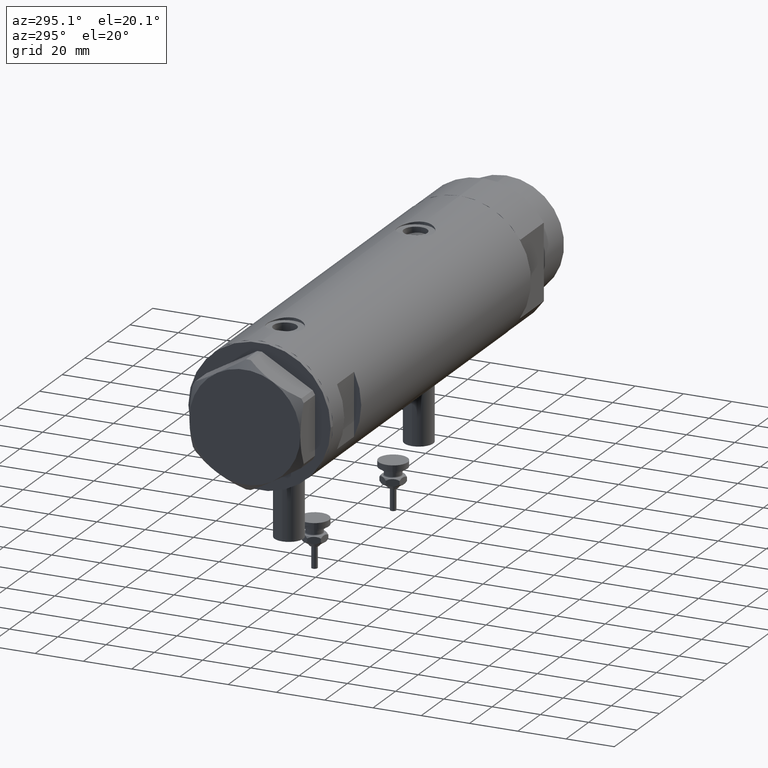
[diagram: clean part render]
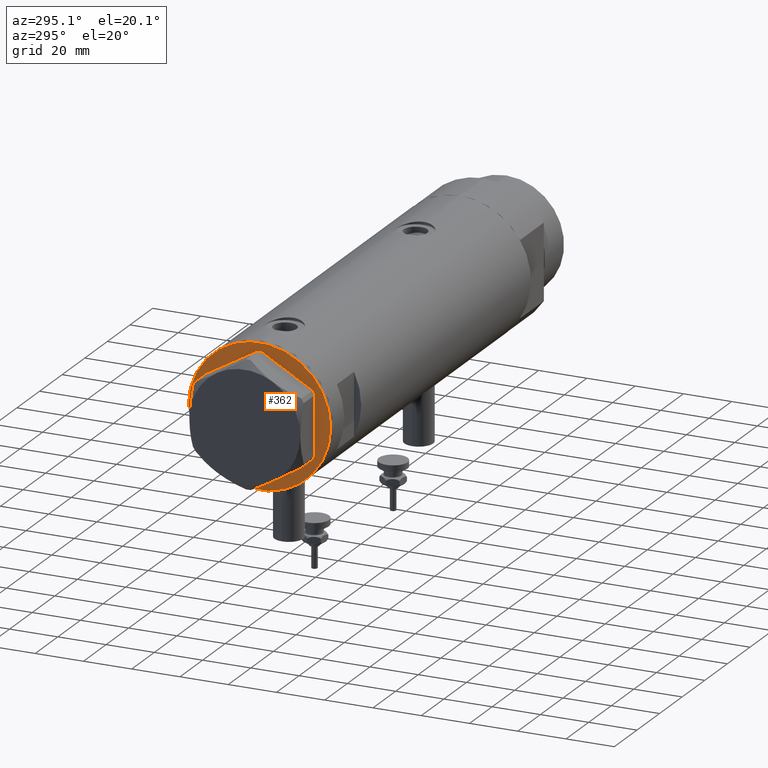
[diagram: same view with one face highlighted and labeled with its STEP entity id]
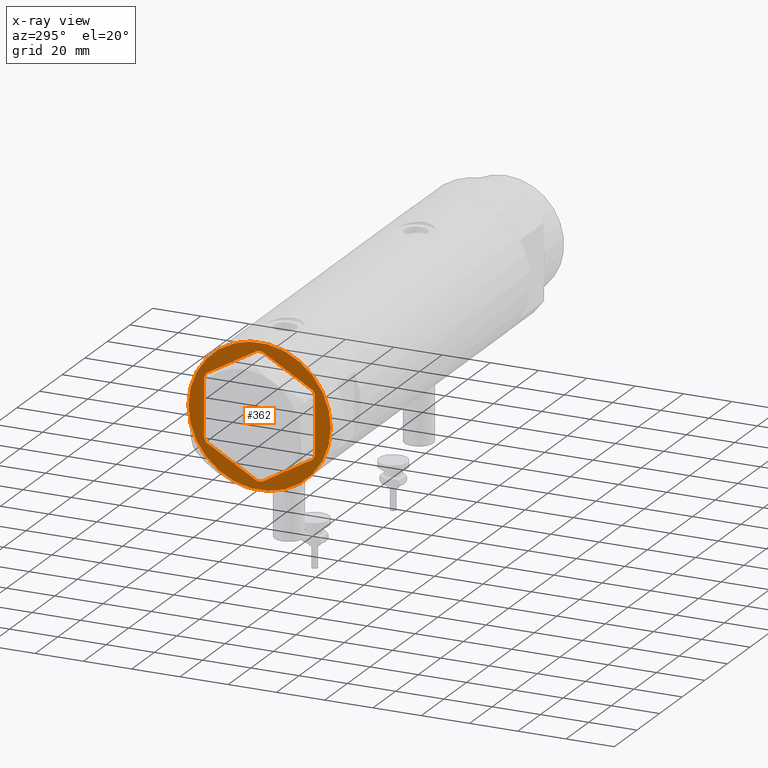
[diagram: x-ray of the same camera — body ghosted, the highlighted face saturated]
A machine part, auxiliary view. The second image highlights one B-rep face of the part: STEP entity #362.
The next image is the same camera in x-ray: the body ghosted, the highlighted face saturated — about 0% of this face is hidden behind the body in this view.
In plain terms, the highlighted planar face has unit normal (1, 0, -0).
Its self-contained STEP definition (entity closure, byte-faithful):
#47 = ORIENTED_EDGE ( 'NONE', *, *, #3498, .F. ) ;
#72 = CARTESIAN_POINT ( 'NONE',  ( 23.00000000000008527, -13.27905619136115867, 0.000000000000000000 ) ) ;
#128 = DIRECTION ( 'NONE',  ( -1.000000000000000000, 0.000000000000000000, 0.000000000000000000 ) ) ;
#138 = DIRECTION ( 'NONE',  ( -1.000000000000000000, -7.153879041605523216E-15, -0.000000000000000000 ) ) ;
#208 = ORIENTED_EDGE ( 'NONE', *, *, #3197, .T. ) ;
#236 = CARTESIAN_POINT ( 'NONE',  ( 22.99999999999982236, 12.15905619136166571, 0.000000000000000000 ) ) ;
#293 = VECTOR ( 'NONE', #5855, 1000.000000000000227 ) ;
#333 = EDGE_CURVE ( 'NONE', #1749, #1551, #4861, .T. ) ;
#342 = DIRECTION ( 'NONE',  ( 0.8660254037844345998, 0.5000000000000069944, 0.000000000000000000 ) ) ;
#355 = DIRECTION ( 'NONE',  ( 0.000000000000000000, 0.000000000000000000, -1.000000000000000000 ) ) ;
#362 = ADVANCED_FACE ( 'NONE', ( #5022, #5078 ), #3181, .F. ) ;
#386 = CARTESIAN_POINT ( 'NONE',  ( -22.99999999999990763, -12.15905619136148985, 0.000000000000000000 ) ) ;
#430 = VERTEX_POINT ( 'NONE', #386 ) ;
#470 = CIRCLE ( 'NONE', #3052, 29.50000000000000355 ) ;
#515 = DIRECTION ( 'NONE',  ( 0.000000000000000000, 0.000000000000000000, -1.000000000000000000 ) ) ;
#581 = VERTEX_POINT ( 'NONE', #236 ) ;
#643 = AXIS2_PLACEMENT_3D ( 'NONE', #2337, #515, #2230 ) ;
#658 = ORIENTED_EDGE ( 'NONE', *, *, #3867, .T. ) ;
#756 = ORIENTED_EDGE ( 'NONE', *, *, #4517, .F. ) ;
#779 = ORIENTED_EDGE ( 'NONE', *, *, #333, .F. ) ;
#988 = CARTESIAN_POINT ( 'NONE',  ( 22.51502577388080795, -12.99905619136115398, 0.000000000000000000 ) ) ;
#1050 = VECTOR ( 'NONE', #5816, 1000.000000000000000 ) ;
#1093 = CARTESIAN_POINT ( 'NONE',  ( -9.299367564803055752E-14, 25.99811238272273428, 0.000000000000000000 ) ) ;
#1137 = CARTESIAN_POINT ( 'NONE',  ( 22.03005154776153773, -13.83905619136115561, 0.000000000000000000 ) ) ;
#1147 = VECTOR ( 'NONE', #2208, 1000.000000000000000 ) ;
#1170 = VERTEX_POINT ( 'NONE', #2377 ) ;
#1221 = DIRECTION ( 'NONE',  ( -1.000000000000000000, 0.000000000000000000, 0.000000000000000000 ) ) ;
#1272 = DIRECTION ( 'NONE',  ( -0.8660254037844415942, 0.4999999999999949485, 0.000000000000000000 ) ) ;
#1432 = LINE ( 'NONE', #5082, #4351 ) ;
#1537 = VERTEX_POINT ( 'NONE', #5922 ) ;
#1551 = VERTEX_POINT ( 'NONE', #2152 ) ;
#1727 = LINE ( 'NONE', #5412, #2493 ) ;
#1732 = LINE ( 'NONE', #3640, #293 ) ;
#1749 = VERTEX_POINT ( 'NONE', #2075 ) ;
#1754 = LINE ( 'NONE', #5054, #1938 ) ;
#1800 = CARTESIAN_POINT ( 'NONE',  ( -22.99999999999999289, 12.15905619136131754, 0.000000000000000000 ) ) ;
#1843 = CARTESIAN_POINT ( 'NONE',  ( -22.99999999999990408, -13.27905619136147841, 0.000000000000000000 ) ) ;
#1915 = DIRECTION ( 'NONE',  ( 0.000000000000000000, 0.000000000000000000, -1.000000000000000000 ) ) ;
#1926 = LINE ( 'NONE', #72, #2580 ) ;
#1938 = VECTOR ( 'NONE', #2210, 1000.000000000000000 ) ;
#1956 = VERTEX_POINT ( 'NONE', #3521 ) ;
#2012 = VECTOR ( 'NONE', #342, 999.9999999999998863 ) ;
#2075 = CARTESIAN_POINT ( 'NONE',  ( -29.50000000000000355, 3.612708057484692393E-15, 0.000000000000000000 ) ) ;
#2094 = EDGE_CURVE ( 'NONE', #1551, #1749, #470, .T. ) ;
#2140 = ORIENTED_EDGE ( 'NONE', *, *, #2747, .F. ) ;
#2152 = CARTESIAN_POINT ( 'NONE',  ( 29.50000000000000355, 0.000000000000000000, 0.000000000000000000 ) ) ;
#2172 = CARTESIAN_POINT ( 'NONE',  ( 22.51502577388055926, 12.99905619136160162, 0.000000000000000000 ) ) ;
#2208 = DIRECTION ( 'NONE',  ( 0.8660254037844415942, -0.4999999999999950595, 0.000000000000000000 ) ) ;
#2210 = DIRECTION ( 'NONE',  ( -0.5000000000000086597, 0.8660254037844337116, -0.000000000000000000 ) ) ;
#2220 = EDGE_CURVE ( 'NONE', #5371, #430, #3511, .T. ) ;
#2230 = DIRECTION ( 'NONE',  ( -1.000000000000000000, 0.000000000000000000, -0.000000000000000000 ) ) ;
#2243 = LINE ( 'NONE', #3101, #4416 ) ;
#2260 = CARTESIAN_POINT ( 'NONE',  ( -22.03005154776141339, 13.83905619136132792, 0.000000000000000000 ) ) ;
#2337 = CARTESIAN_POINT ( 'NONE',  ( 0.000000000000000000, 0.000000000000000000, 0.000000000000000000 ) ) ;
#2377 = CARTESIAN_POINT ( 'NONE',  ( -22.03005154776132102, -13.83905619136147536, 0.000000000000000000 ) ) ;
#2480 = ORIENTED_EDGE ( 'NONE', *, *, #4957, .T. ) ;
#2493 = VECTOR ( 'NONE', #1272, 999.9999999999998863 ) ;
#2580 = VECTOR ( 'NONE', #5556, 1000.000000000000000 ) ;
#2605 = ORIENTED_EDGE ( 'NONE', *, *, #2220, .F. ) ;
#2700 = LINE ( 'NONE', #2172, #5206 ) ;
#2713 = EDGE_CURVE ( 'NONE', #1537, #5428, #2243, .T. ) ;
#2747 = EDGE_CURVE ( 'NONE', #5311, #3623, #4970, .T. ) ;
#2793 = ORIENTED_EDGE ( 'NONE', *, *, #3704, .T. ) ;
#2819 = EDGE_CURVE ( 'NONE', #1170, #3407, #5404, .T. ) ;
#2867 = CARTESIAN_POINT ( 'NONE',  ( 0.000000000000000000, 0.000000000000000000, 0.000000000000000000 ) ) ;
#2927 = VERTEX_POINT ( 'NONE', #5591 ) ;
#2972 = VERTEX_POINT ( 'NONE', #5088 ) ;
#3052 = AXIS2_PLACEMENT_3D ( 'NONE', #2867, #1915, #128 ) ;
#3101 = CARTESIAN_POINT ( 'NONE',  ( 0.000000000000000000, 26.55811238272274366, 0.000000000000000000 ) ) ;
#3181 = PLANE ( 'NONE',  #643 ) ;
#3197 = EDGE_CURVE ( 'NONE', #1537, #1956, #5208, .T. ) ;
#3206 = CARTESIAN_POINT ( 'NONE',  ( -0.9699484522383873264, -25.99811238272275205, 0.000000000000000000 ) ) ;
#3259 = VECTOR ( 'NONE', #5738, 1000.000000000000000 ) ;
#3407 = VERTEX_POINT ( 'NONE', #3206 ) ;
#3462 = CARTESIAN_POINT ( 'NONE',  ( 0.9699484522387533669, -25.99811238272273428, 0.000000000000000000 ) ) ;
#3498 = EDGE_CURVE ( 'NONE', #2972, #581, #1926, .T. ) ;
#3511 = LINE ( 'NONE', #5341, #1050 ) ;
#3521 = CARTESIAN_POINT ( 'NONE',  ( 0.9699484522385886098, 25.99811238272273783, 0.000000000000000000 ) ) ;
#3532 = ORIENTED_EDGE ( 'NONE', *, *, #5514, .T. ) ;
#3561 = VECTOR ( 'NONE', #4651, 1000.000000000000000 ) ;
#3623 = VERTEX_POINT ( 'NONE', #1137 ) ;
#3640 = CARTESIAN_POINT ( 'NONE',  ( -22.51502577388069781, 12.99905619136134050, 0.000000000000000000 ) ) ;
#3704 = EDGE_CURVE ( 'NONE', #5371, #5428, #1732, .T. ) ;
#3705 = ORIENTED_EDGE ( 'NONE', *, *, #2713, .F. ) ;
#3867 = EDGE_CURVE ( 'NONE', #2972, #3623, #5107, .T. ) ;
#4015 = AXIS2_PLACEMENT_3D ( 'NONE', #4478, #355, #1221 ) ;
#4146 = ORIENTED_EDGE ( 'NONE', *, *, #2819, .F. ) ;
#4327 = ORIENTED_EDGE ( 'NONE', *, *, #5606, .T. ) ;
#4351 = VECTOR ( 'NONE', #138, 1000.000000000000000 ) ;
#4416 = VECTOR ( 'NONE', #4944, 1000.000000000000227 ) ;
#4478 = CARTESIAN_POINT ( 'NONE',  ( 0.000000000000000000, 0.000000000000000000, 0.000000000000000000 ) ) ;
#4517 = EDGE_CURVE ( 'NONE', #2927, #1956, #1727, .T. ) ;
#4539 = DIRECTION ( 'NONE',  ( 0.5000000000000086597, -0.8660254037844337116, -0.000000000000000000 ) ) ;
#4651 = DIRECTION ( 'NONE',  ( -0.4999999999999915623, -0.8660254037844434816, -0.000000000000000000 ) ) ;
#4723 = EDGE_LOOP ( 'NONE', ( #756, #3532, #47, #658, #2140, #4327, #4146, #2480, #2605, #2793, #3705, #208 ) ) ;
#4861 = CIRCLE ( 'NONE', #4015, 29.50000000000000355 ) ;
#4944 = DIRECTION ( 'NONE',  ( -0.8660254037844380415, -0.5000000000000008882, 0.000000000000000000 ) ) ;
#4957 = EDGE_CURVE ( 'NONE', #1170, #430, #1754, .T. ) ;
#4970 = LINE ( 'NONE', #5869, #2012 ) ;
#5022 = FACE_BOUND ( 'NONE', #4723, .T. ) ;
#5054 = CARTESIAN_POINT ( 'NONE',  ( -22.51502577388055215, -12.99905619136159629, 0.000000000000000000 ) ) ;
#5078 = FACE_OUTER_BOUND ( 'NONE', #5599, .T. ) ;
#5082 = CARTESIAN_POINT ( 'NONE',  ( 1.859873512960652550E-13, -25.99811238272274139, 0.000000000000000000 ) ) ;
#5088 = CARTESIAN_POINT ( 'NONE',  ( 23.00000000000007461, -12.15905619136117721, 0.000000000000000000 ) ) ;
#5107 = LINE ( 'NONE', #988, #3561 ) ;
#5206 = VECTOR ( 'NONE', #4539, 999.9999999999998863 ) ;
#5208 = LINE ( 'NONE', #1093, #3259 ) ;
#5311 = VERTEX_POINT ( 'NONE', #3462 ) ;
#5334 = ORIENTED_EDGE ( 'NONE', *, *, #2094, .F. ) ;
#5341 = CARTESIAN_POINT ( 'NONE',  ( -22.99999999999999645, 13.27905619136132032, 0.000000000000000000 ) ) ;
#5371 = VERTEX_POINT ( 'NONE', #1800 ) ;
#5404 = LINE ( 'NONE', #1843, #1147 ) ;
#5412 = CARTESIAN_POINT ( 'NONE',  ( 22.99999999999981171, 13.27905619136164184, 0.000000000000000000 ) ) ;
#5428 = VERTEX_POINT ( 'NONE', #2260 ) ;
#5514 = EDGE_CURVE ( 'NONE', #2927, #581, #2700, .T. ) ;
#5556 = DIRECTION ( 'NONE',  ( -1.032024811306395780E-14, 1.000000000000000000, 0.000000000000000000 ) ) ;
#5591 = CARTESIAN_POINT ( 'NONE',  ( 22.03005154776124996, 13.83905619136162635, 0.000000000000000000 ) ) ;
#5599 = EDGE_LOOP ( 'NONE', ( #5334, #779 ) ) ;
#5606 = EDGE_CURVE ( 'NONE', #5311, #3407, #1432, .T. ) ;
#5738 = DIRECTION ( 'NONE',  ( 1.000000000000000000, 3.576939520802682722E-15, -0.000000000000000000 ) ) ;
#5816 = DIRECTION ( 'NONE',  ( 3.527173405730720141E-15, -1.000000000000000000, 0.000000000000000000 ) ) ;
#5855 = DIRECTION ( 'NONE',  ( 0.4999999999999986677, 0.8660254037844392627, -0.000000000000000000 ) ) ;
#5869 = CARTESIAN_POINT ( 'NONE',  ( 1.854543075583504180E-13, -26.55811238272274366, 0.000000000000000000 ) ) ;
#5922 = CARTESIAN_POINT ( 'NONE',  ( -0.9699484522385893870, 25.99811238272273073, 0.000000000000000000 ) ) ;